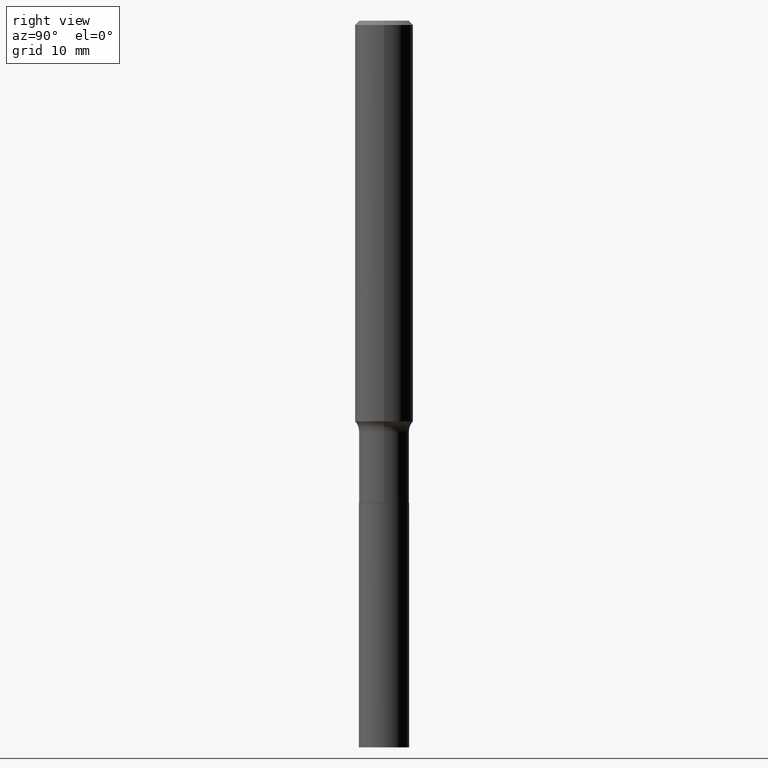
[diagram: clean part render]
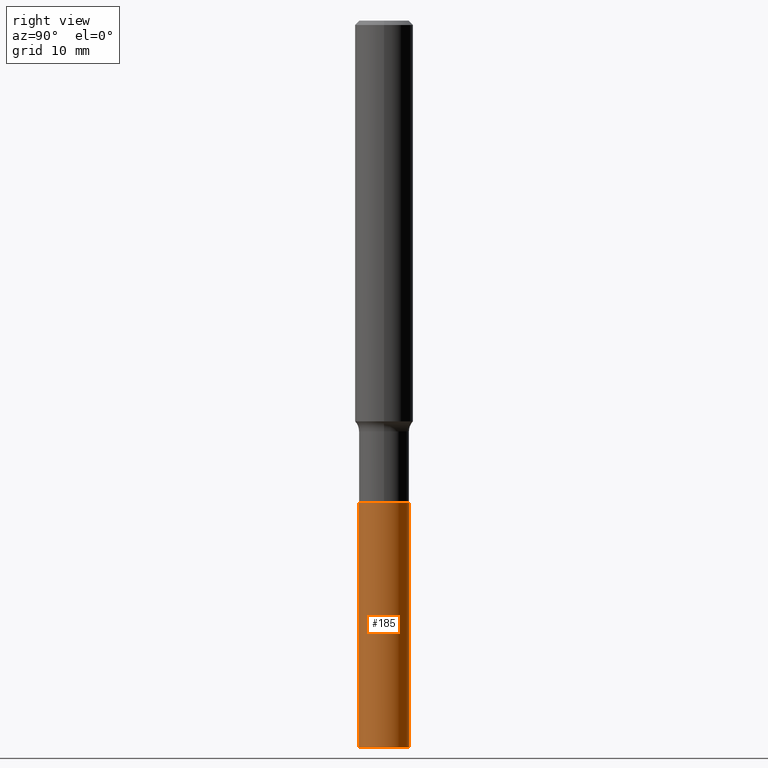
[diagram: same view with one face highlighted and labeled with its STEP entity id]
A machine part, right view. The second image highlights one B-rep face of the part: STEP entity #185.
In plain terms, the highlighted cylindrical surface (edge-blend (fillet) strip) has radius 3.4544 mm, axis along (-0, 0, 1).
Its self-contained STEP definition (entity closure, byte-faithful):
#13 = DIRECTION ( 'NONE',  ( -6.982962677686265922E-15, -1.000000000000000000, 4.017423520094504617E-15 ) ) ;
#14 = FACE_OUTER_BOUND ( 'NONE', #320, .T. ) ;
#37 = CARTESIAN_POINT ( 'NONE',  ( 9.627366479566132593E-29, -1.374659816557931194E-14, -3.937000000000000277 ) ) ;
#46 = ORIENTED_EDGE ( 'NONE', *, *, #200, .F. ) ;
#59 = CARTESIAN_POINT ( 'NONE',  ( -9.496829241652681619E-16, -0.1360000000000091136, -2.612999999999999101 ) ) ;
#70 = DIRECTION ( 'NONE',  ( -2.445133299852243437E-29, 3.491961803007682991E-15, 1.000000000000000000 ) ) ;
#76 = VECTOR ( 'NONE', #268, 39.37007874015748143 ) ;
#89 = ORIENTED_EDGE ( 'NONE', *, *, #151, .T. ) ;
#91 = AXIS2_PLACEMENT_3D ( 'NONE', #304, #118, #120 ) ;
#93 = DIRECTION ( 'NONE',  ( -2.445133299852243437E-29, 3.491961803007682991E-15, 1.000000000000000000 ) ) ;
#94 = LINE ( 'NONE', #194, #76 ) ;
#118 = DIRECTION ( 'NONE',  ( -2.445133299852243437E-29, 3.491961803007682991E-15, 1.000000000000000000 ) ) ;
#120 = DIRECTION ( 'NONE',  ( -6.982962677686265922E-15, -1.000000000000000000, 4.017423520094504617E-15 ) ) ;
#151 = EDGE_CURVE ( 'NONE', #263, #398, #422, .T. ) ;
#164 = CIRCLE ( 'NONE', #91, 0.1360000000000000098 ) ;
#168 = DIRECTION ( 'NONE',  ( -6.982962677686265922E-15, -1.000000000000000000, 4.017423520094504617E-15 ) ) ;
#176 = EDGE_CURVE ( 'NONE', #411, #227, #94, .T. ) ;
#185 = ADVANCED_FACE ( 'NONE', ( #14 ), #234, .T. ) ;
#194 = CARTESIAN_POINT ( 'NONE',  ( -9.496829241652681619E-16, -0.1360000000000091136, -2.612999999999999101 ) ) ;
#200 = EDGE_CURVE ( 'NONE', #227, #398, #164, .T. ) ;
#217 = CARTESIAN_POINT ( 'NONE',  ( 9.663381206338327605E-16, 0.1359999999999908782, -2.613000000000000433 ) ) ;
#227 = VERTEX_POINT ( 'NONE', #59 ) ;
#234 = CYLINDRICAL_SURFACE ( 'NONE', #447, 0.1360000000000000098 ) ;
#243 = DIRECTION ( 'NONE',  ( -2.445133299852243437E-29, 3.491961803007683385E-15, 1.000000000000000000 ) ) ;
#246 = CARTESIAN_POINT ( 'NONE',  ( 9.663381206338000227E-16, 0.1359999999999908782, -2.613000000000000433 ) ) ;
#251 = CARTESIAN_POINT ( 'NONE',  ( -9.496829241652358186E-16, -0.1360000000000137488, -3.936999999999999389 ) ) ;
#263 = VERTEX_POINT ( 'NONE', #410 ) ;
#268 = DIRECTION ( 'NONE',  ( -2.445133299852243437E-29, 3.491961803007683385E-15, 1.000000000000000000 ) ) ;
#297 = ORIENTED_EDGE ( 'NONE', *, *, #176, .F. ) ;
#304 = CARTESIAN_POINT ( 'NONE',  ( 6.390009990561760815E-29, -9.123240738397138949E-15, -2.612999999999999545 ) ) ;
#307 = VECTOR ( 'NONE', #243, 39.37007874015748143 ) ;
#320 = EDGE_LOOP ( 'NONE', ( #334, #89, #46, #297 ) ) ;
#327 = AXIS2_PLACEMENT_3D ( 'NONE', #37, #70, #168 ) ;
#330 = EDGE_CURVE ( 'NONE', #411, #263, #425, .T. ) ;
#334 = ORIENTED_EDGE ( 'NONE', *, *, #330, .T. ) ;
#398 = VERTEX_POINT ( 'NONE', #217 ) ;
#410 = CARTESIAN_POINT ( 'NONE',  ( 9.663381206338163916E-16, 0.1359999999999862430, -3.937000000000000721 ) ) ;
#411 = VERTEX_POINT ( 'NONE', #251 ) ;
#417 = CARTESIAN_POINT ( 'NONE',  ( 6.390009990561760815E-29, -9.123240738397138949E-15, -2.612999999999999545 ) ) ;
#422 = LINE ( 'NONE', #246, #307 ) ;
#425 = CIRCLE ( 'NONE', #327, 0.1360000000000000098 ) ;
#447 = AXIS2_PLACEMENT_3D ( 'NONE', #417, #93, #13 ) ;